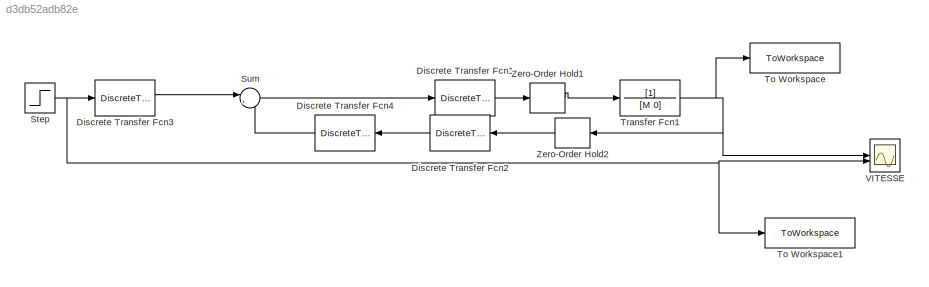
MODEL slx_d3db52adb82e
KIND model
CONFIG AbsTol = auto
CONFIG EnableMultiTasking = off
CONFIG FixedStep = auto
CONFIG MaxStep = auto
CONFIG MinStep = auto
CONFIG RelTol = 1e-3
CONFIG SampleTimeConstraint = Unconstrained
CONFIG SolverName = VariableStepAuto
CONFIG StartTime = 0.0
CONFIG StopTime = 10.0
BLOCK [DiscreteTransferFcn] Discrete Transfer Fcn1
  Denominator = [1 0 0 0]
  InputPortMap = u0
  Numerator = 1
  SampleTime = Te
BLOCK [DiscreteTransferFcn] Discrete Transfer Fcn2
  Denominator = [1 0]
  InputPortMap = u0
  Numerator = 1
  SampleTime = Te
BLOCK [DiscreteTransferFcn] Discrete Transfer Fcn3
  Denominator = numR
  InputPortMap = u0
  Numerator = numT
  SampleTime = Te
BLOCK [DiscreteTransferFcn] Discrete Transfer Fcn4
  Denominator = numR
  InputPortMap = u0
  NameLocation = top
  Numerator = numS
  SampleTime = Te
BLOCK [Step] Step
  SampleTime = 0
  Time = 0
BLOCK [Sum] Sum
  Inputs = |+-
BLOCK [ToWorkspace] To Workspace
  FixptAsFi = on
  MaxDataPoints = inf
  SampleTime = -1
  SaveFormat = Timeseries
  VariableName = v
BLOCK [ToWorkspace] To Workspace1
  FixptAsFi = on
  MaxDataPoints = inf
  SampleTime = -1
  SaveFormat = Timeseries
  VariableName = vr
BLOCK [TransferFcn] Transfer Fcn1
  Denominator = [M 0]
BLOCK [Scope] VITESSE
  Floating = off
  NumInputPorts = 2
  ScopeSpecificationString = Simulink.scopes.TimeScopeBlockCfg('CurrentConfiguration', extmgr.ConfigurationSet(extmgr.Configuration('Core','General UI',true),extmgr.Configuration('Core','Source UI',true),extmgr.Configuration('Sources','WiredSimulink',true),extmgr.Configuration('Visuals','Time Domain',true,'SerializedDisplays',{struct('MinYLimReal','-0.125','MaxYLimReal','1.125','YLabelReal','','MinYLimMag','0.00000','MaxYLimM...<+1357ch>
BLOCK [ZeroOrderHold] Zero-Order Hold1
  SampleTime = Te
BLOCK [ZeroOrderHold] Zero-Order Hold2
  NameLocation = top
  SampleTime = Te
LINE Discrete Transfer Fcn1:1 -> Zero-Order Hold1:1
LINE Discrete Transfer Fcn2:1 -> Discrete Transfer Fcn4:1
LINE Discrete Transfer Fcn3:1 -> Sum:1
LINE Discrete Transfer Fcn4:1 -> Sum:2
NET Step:1 -> Discrete Transfer Fcn3:1, To Workspace1:1, VITESSE:2
LINE Sum:1 -> Discrete Transfer Fcn1:1
NET Transfer Fcn1:1 -> To Workspace:1, VITESSE:1, Zero-Order Hold2:1
LINE Zero-Order Hold1:1 -> Transfer Fcn1:1
LINE Zero-Order Hold2:1 -> Discrete Transfer Fcn2:1
note: NET lines group one-source signal fan-out (src -> all destinations, sorted); 1:1 wires keep LINE
